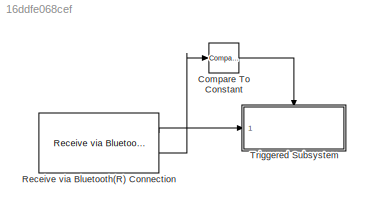
MODEL slx_16ddfe068cef
KIND model
BLOCK [Reference] Compare To Constant  REF=simulink/Logic and Bit
Operations/Compare
To Constant
  OutDataTypeStr = boolean
  Ports = [1, 1]
  SourceBlock = simulink/Logic and Bit\nOperations/Compare\nTo Constant
  SourceType = Compare To Constant
  ZeroCross = on
  const = 0
  relop = >
BLOCK [Reference] Receive via Bluetooth(R) Connection  REF=legonxtlib/Receive via Bluetooth(R) Connection
  Ports = [0, 2]
  SourceBlock = legonxtlib/Receive via Bluetooth(R) Connection
  SourceType = LEGO MINDSTORMS NXT Receive via Bluetooth(R) Connection
  dataSize = 1
  dataType = uint8
  mailbox = 1
  sampleTime = 0.1
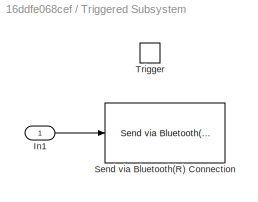
BLOCK [SubSystem] Triggered Subsystem
  Ports = [1, 0, 0, 1]
  RequestExecContextInheritance = off
  TreatAsAtomicUnit = on
BLOCK [Inport] Triggered Subsystem/In1
  IconDisplay = Port number
BLOCK [Reference] Triggered Subsystem/Send via Bluetooth(R) Connection  REF=legonxtlib/Send via Bluetooth(R) Connection
  Ports = [1]
  SourceBlock = legonxtlib/Send via Bluetooth(R) Connection
  SourceType = LEGO MINDSTORMS NXT Send via Bluetooth(R) Connection
  mailbox = 1
BLOCK [TriggerPort] Triggered Subsystem/Trigger
  Ports = []
  StatesWhenEnabling = held
LINE Compare To Constant:1 -> Triggered Subsystem:trigger
LINE Receive via Bluetooth(R) Connection:1 -> Triggered Subsystem:1
LINE Receive via Bluetooth(R) Connection:2 -> Compare To Constant:1
LINE Triggered Subsystem/In1:1 -> Triggered Subsystem/Send via Bluetooth(R) Connection:1
